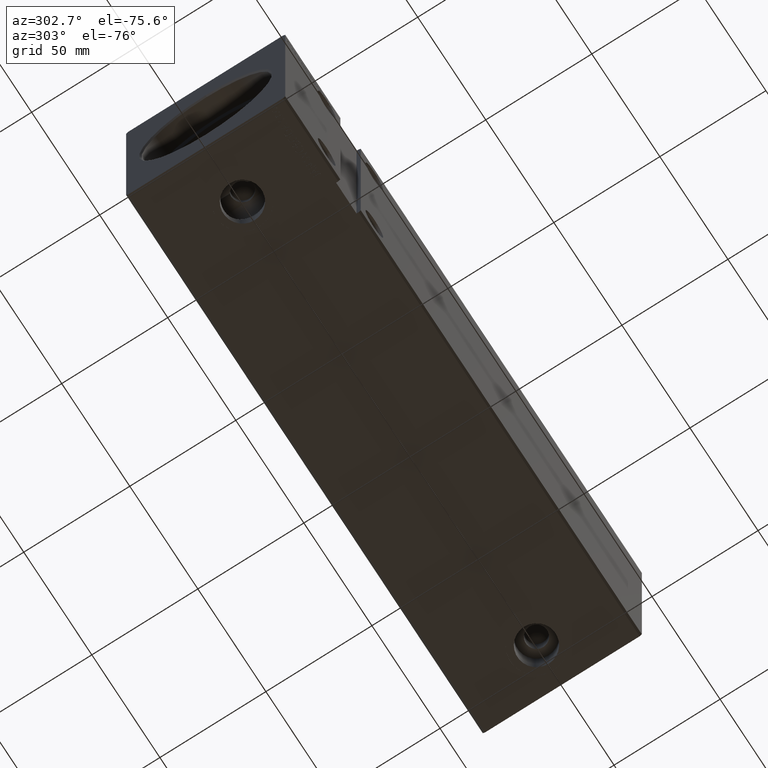
[diagram: clean part render]
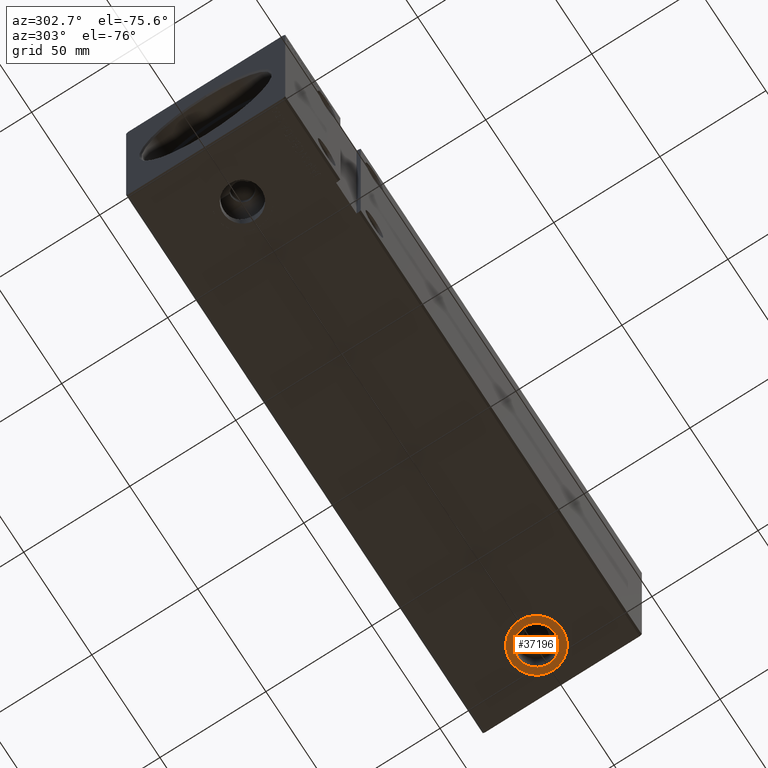
[diagram: same view with one face highlighted and labeled with its STEP entity id]
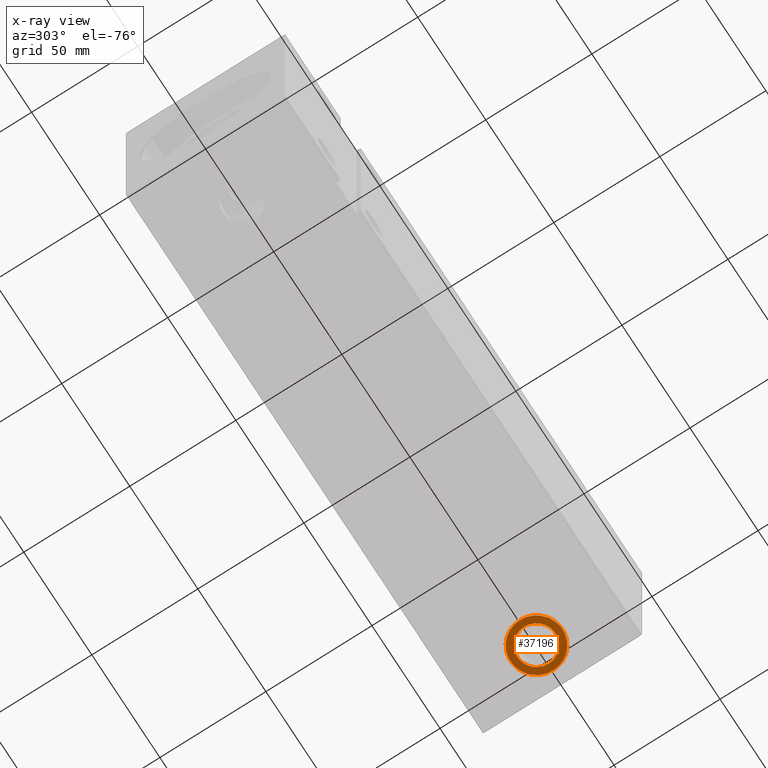
[diagram: x-ray of the same camera — body ghosted, the highlighted face saturated]
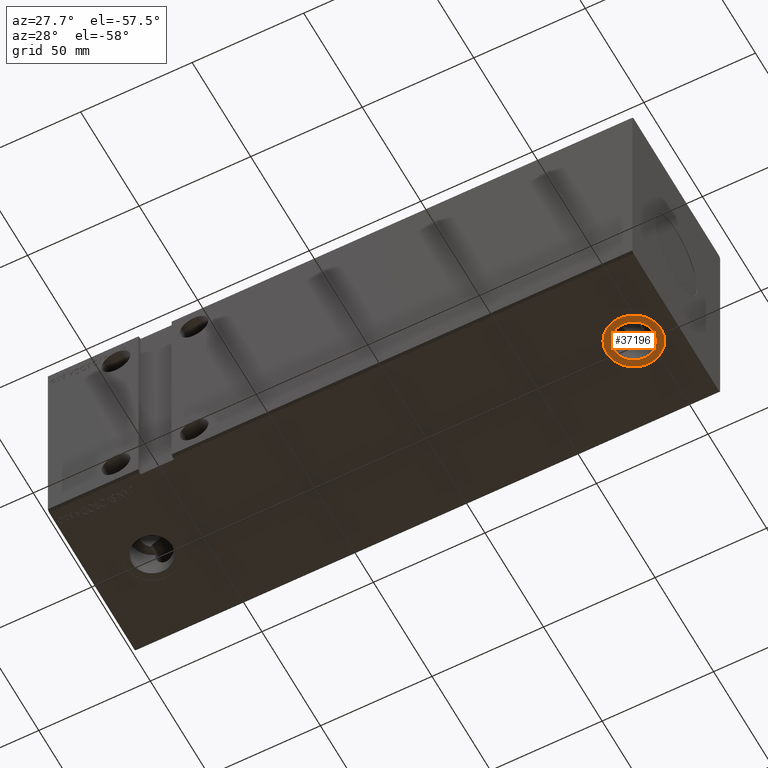
[diagram: same view with one face highlighted and labeled with its STEP entity id]
A machine part, auxiliary view. The second image highlights one B-rep face of the part: STEP entity #37196.
The next image is the same camera in x-ray: the body ghosted, the highlighted face saturated — about 0% of this face is hidden behind the body in this view.
A second angle (auxiliary view) of the same face is appended — the face is thin or edge-on in the first view.
In plain terms, the highlighted planar face has unit normal (0, 0, -1).
Its self-contained STEP definition (entity closure, byte-faithful):
#457 = CARTESIAN_POINT ( 'NONE',  ( 234.0000000000000000, -2.725862270335951630E-14, -49.89999999999999858 ) ) ;
#789 = DIRECTION ( 'NONE',  ( 0.000000000000000000, 0.000000000000000000, -1.000000000000000000 ) ) ;
#1035 = AXIS2_PLACEMENT_3D ( 'NONE', #11863, #33432, #8130 ) ;
#1150 = CIRCLE ( 'NONE', #23669, 9.000000000000007105 ) ;
#2332 = DIRECTION ( 'NONE',  ( 0.000000000000000000, 0.000000000000000000, -1.000000000000000000 ) ) ;
#2516 = VERTEX_POINT ( 'NONE', #16217 ) ;
#6126 = ORIENTED_EDGE ( 'NONE', *, *, #8161, .F. ) ;
#6931 = DIRECTION ( 'NONE',  ( 0.000000000000000000, 0.000000000000000000, -1.000000000000000000 ) ) ;
#7142 = CARTESIAN_POINT ( 'NONE',  ( 243.0000000000000284, -2.725862270335951630E-14, -49.89999999999999858 ) ) ;
#8130 = DIRECTION ( 'NONE',  ( -1.000000000000000000, 0.000000000000000000, 0.000000000000000000 ) ) ;
#8161 = EDGE_CURVE ( 'NONE', #11227, #31628, #28008, .T. ) ;
#8453 = CARTESIAN_POINT ( 'NONE',  ( 255.2500000000000284, -2.575843037440400443E-14, -49.89999999999999858 ) ) ;
#8722 = DIRECTION ( 'NONE',  ( 0.000000000000000000, 0.000000000000000000, -1.000000000000000000 ) ) ;
#8785 = EDGE_LOOP ( 'NONE', ( #6126, #36617 ) ) ;
#9586 = VERTEX_POINT ( 'NONE', #8453 ) ;
#10122 = CARTESIAN_POINT ( 'NONE',  ( 243.0000000000000284, -2.725862270335951630E-14, -49.89999999999999858 ) ) ;
#11227 = VERTEX_POINT ( 'NONE', #457 ) ;
#11863 = CARTESIAN_POINT ( 'NONE',  ( 243.0000000000000284, -2.725862270335951630E-14, -49.89999999999999858 ) ) ;
#13360 = ORIENTED_EDGE ( 'NONE', *, *, #31639, .T. ) ;
#14773 = EDGE_CURVE ( 'NONE', #2516, #9586, #18921, .T. ) ;
#14840 = EDGE_LOOP ( 'NONE', ( #38338, #13360 ) ) ;
#15391 = DIRECTION ( 'NONE',  ( -1.000000000000000000, 0.000000000000000000, -0.000000000000000000 ) ) ;
#16217 = CARTESIAN_POINT ( 'NONE',  ( 230.7500000000000000, -2.725862270335951630E-14, -49.89999999999999858 ) ) ;
#16813 = CIRCLE ( 'NONE', #36023, 12.25000000000001066 ) ;
#18088 = FACE_BOUND ( 'NONE', #8785, .T. ) ;
#18257 = AXIS2_PLACEMENT_3D ( 'NONE', #40273, #2332, #15391 ) ;
#18921 = CIRCLE ( 'NONE', #1035, 12.25000000000001066 ) ;
#20108 = EDGE_CURVE ( 'NONE', #31628, #11227, #1150, .T. ) ;
#20990 = PLANE ( 'NONE',  #18257 ) ;
#22578 = DIRECTION ( 'NONE',  ( -1.000000000000000000, 0.000000000000000000, 0.000000000000000000 ) ) ;
#23669 = AXIS2_PLACEMENT_3D ( 'NONE', #31114, #8722, #22578 ) ;
#26211 = DIRECTION ( 'NONE',  ( -1.000000000000000000, 0.000000000000000000, 0.000000000000000000 ) ) ;
#26692 = AXIS2_PLACEMENT_3D ( 'NONE', #10122, #789, #32310 ) ;
#28008 = CIRCLE ( 'NONE', #26692, 9.000000000000007105 ) ;
#31114 = CARTESIAN_POINT ( 'NONE',  ( 243.0000000000000284, -2.725862270335951630E-14, -49.89999999999999858 ) ) ;
#31628 = VERTEX_POINT ( 'NONE', #38444 ) ;
#31639 = EDGE_CURVE ( 'NONE', #9586, #2516, #16813, .T. ) ;
#32310 = DIRECTION ( 'NONE',  ( -1.000000000000000000, 0.000000000000000000, 0.000000000000000000 ) ) ;
#33432 = DIRECTION ( 'NONE',  ( 0.000000000000000000, 0.000000000000000000, -1.000000000000000000 ) ) ;
#36023 = AXIS2_PLACEMENT_3D ( 'NONE', #7142, #6931, #26211 ) ;
#36617 = ORIENTED_EDGE ( 'NONE', *, *, #20108, .F. ) ;
#37196 = ADVANCED_FACE ( 'NONE', ( #18088, #40680 ), #20990, .T. ) ;
#38338 = ORIENTED_EDGE ( 'NONE', *, *, #14773, .T. ) ;
#38444 = CARTESIAN_POINT ( 'NONE',  ( 252.0000000000000568, -2.615644058412689997E-14, -49.89999999999999858 ) ) ;
#40273 = CARTESIAN_POINT ( 'NONE',  ( 243.0000000000000284, -2.725862270335951630E-14, -49.89999999999999858 ) ) ;
#40680 = FACE_OUTER_BOUND ( 'NONE', #14840, .T. ) ;